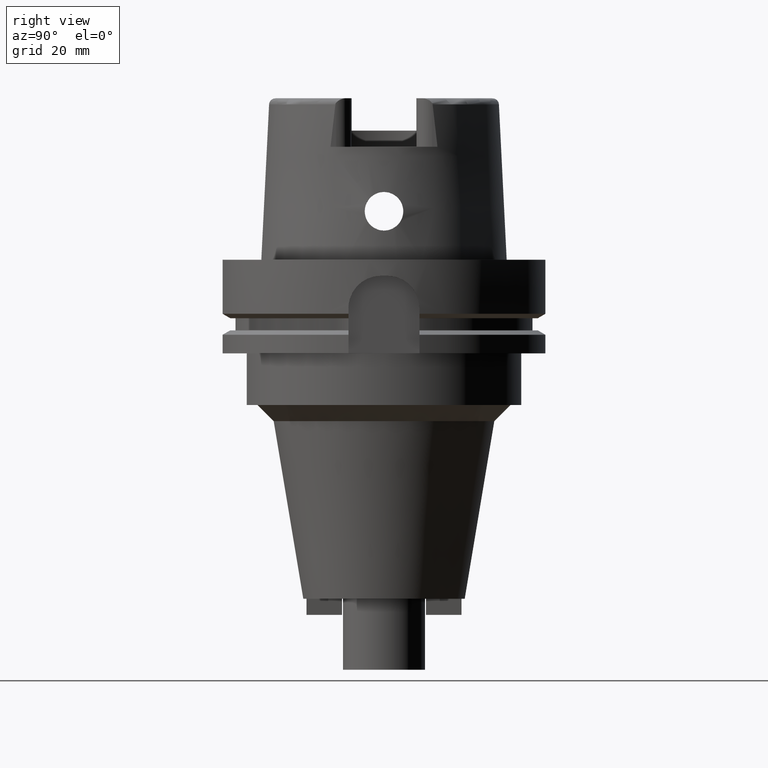
[diagram: clean part render]
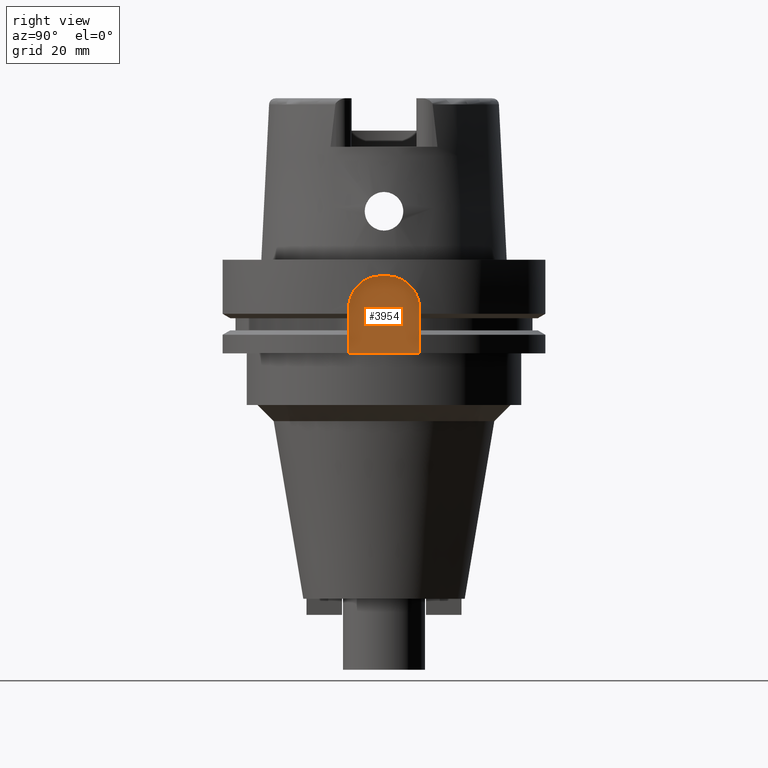
[diagram: same view with one face highlighted and labeled with its STEP entity id]
A machine part, right view. The second image highlights one B-rep face of the part: STEP entity #3954.
In plain terms, the highlighted planar face has unit normal (1, 0, 0).
Its self-contained STEP definition (entity closure, byte-faithful):
#1497=DIRECTION('',(0.E0,-1.E0,0.E0));
#1498=VECTOR('',#1497,2.2E1);
#1499=CARTESIAN_POINT('',(4.4E1,1.1E1,-2.9E1));
#1500=LINE('',#1499,#1498);
#1504=DIRECTION('',(0.E0,0.E0,1.E0));
#1505=VECTOR('',#1504,1.4E1);
#1506=CARTESIAN_POINT('',(4.4E1,-1.1E1,-2.9E1));
#1507=LINE('',#1506,#1505);
#1511=CARTESIAN_POINT('',(4.4E1,-1.E0,-1.5E1));
#1512=DIRECTION('',(-1.E0,0.E0,0.E0));
#1513=DIRECTION('',(0.E0,-1.E0,0.E0));
#1514=AXIS2_PLACEMENT_3D('',#1511,#1512,#1513);
#1519=DIRECTION('',(0.E0,1.E0,0.E0));
#1520=VECTOR('',#1519,2.E0);
#1521=CARTESIAN_POINT('',(4.4E1,-1.E0,-5.E0));
#1522=LINE('',#1521,#1520);
#1526=CARTESIAN_POINT('',(4.4E1,1.E0,-1.5E1));
#1527=DIRECTION('',(-1.E0,0.E0,0.E0));
#1528=DIRECTION('',(0.E0,2.156053113822E-14,1.E0));
#1529=AXIS2_PLACEMENT_3D('',#1526,#1527,#1528);
#1534=DIRECTION('',(0.E0,0.E0,-1.E0));
#1535=VECTOR('',#1534,1.4E1);
#1536=CARTESIAN_POINT('',(4.4E1,1.1E1,-1.5E1));
#1537=LINE('',#1536,#1535);
#2667=CARTESIAN_POINT('',(4.4E1,-1.1E1,-2.9E1));
#2668=VERTEX_POINT('',#2667);
#2669=CARTESIAN_POINT('',(4.4E1,1.1E1,-2.9E1));
#2670=VERTEX_POINT('',#2669);
#2789=CARTESIAN_POINT('',(4.4E1,1.E0,-5.E0));
#2790=VERTEX_POINT('',#2789);
#2791=CARTESIAN_POINT('',(4.4E1,-1.E0,-5.E0));
#2792=VERTEX_POINT('',#2791);
#2793=CARTESIAN_POINT('',(4.4E1,1.1E1,-1.5E1));
#2794=VERTEX_POINT('',#2793);
#2795=CARTESIAN_POINT('',(4.4E1,-1.1E1,-1.5E1));
#2796=VERTEX_POINT('',#2795);
#3937=CARTESIAN_POINT('',(4.4E1,0.E0,0.E0));
#3938=DIRECTION('',(1.E0,0.E0,0.E0));
#3939=DIRECTION('',(0.E0,0.E0,-1.E0));
#3940=AXIS2_PLACEMENT_3D('',#3937,#3938,#3939);
#3941=PLANE('',#3940);
#3942=ORIENTED_EDGE('',*,*,#3852,.T.);
#3944=ORIENTED_EDGE('',*,*,#3943,.T.);
#3946=ORIENTED_EDGE('',*,*,#3945,.T.);
#3948=ORIENTED_EDGE('',*,*,#3947,.T.);
#3950=ORIENTED_EDGE('',*,*,#3949,.T.);
#3951=ORIENTED_EDGE('',*,*,#3917,.T.);
#3952=EDGE_LOOP('',(#3942,#3944,#3946,#3948,#3950,#3951));
#3953=FACE_OUTER_BOUND('',#3952,.F.);
#1515=CIRCLE('',#1514,1.E1);
#1530=CIRCLE('',#1529,1.E1);
#3852=EDGE_CURVE('',#2670,#2668,#1500,.T.);
#3917=EDGE_CURVE('',#2794,#2670,#1537,.T.);
#3943=EDGE_CURVE('',#2668,#2796,#1507,.T.);
#3945=EDGE_CURVE('',#2796,#2792,#1515,.T.);
#3947=EDGE_CURVE('',#2792,#2790,#1522,.T.);
#3949=EDGE_CURVE('',#2790,#2794,#1530,.T.);
#3954=ADVANCED_FACE('',(#3953),#3941,.T.);